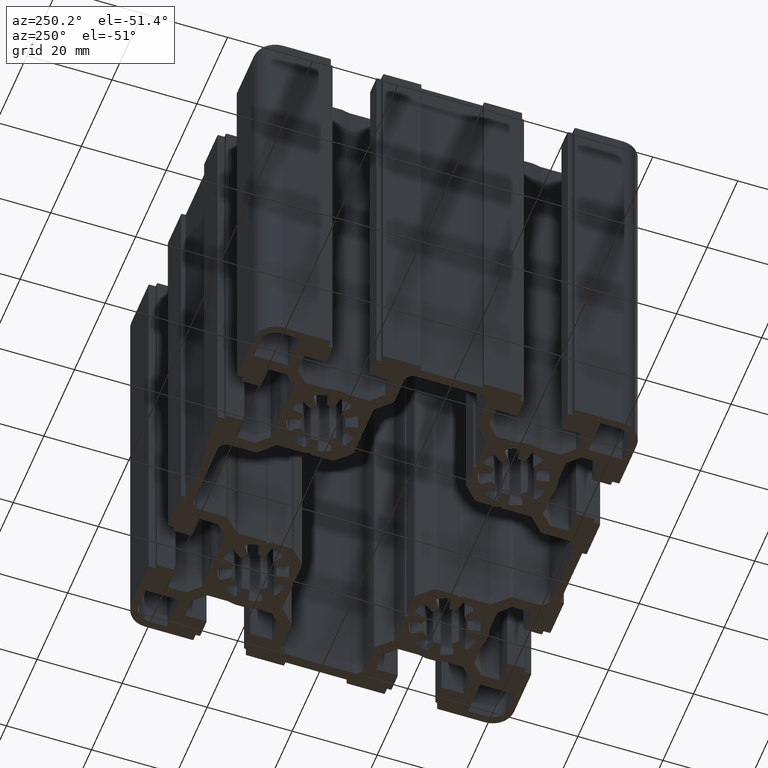
[diagram: clean part render]
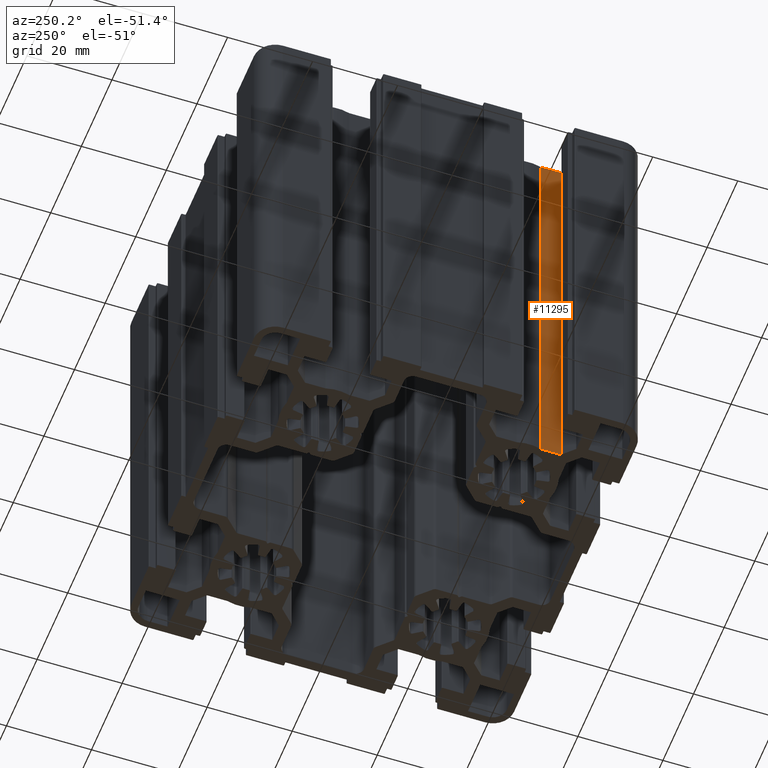
[diagram: same view with one face highlighted and labeled with its STEP entity id]
A machine part, auxiliary view. The second image highlights one B-rep face of the part: STEP entity #11295.
In plain terms, the highlighted planar face has unit normal (-1, 0, 0).
Its self-contained STEP definition (entity closure, byte-faithful):
#210=PLANE('',#12297);
#701=FACE_OUTER_BOUND('',#1275,.T.);
#1275=EDGE_LOOP('',(#8737,#8738,#8739,#8740));
#2228=LINE('',#18469,#3352);
#2229=LINE('',#18472,#3353);
#2230=LINE('',#18474,#3354);
#2231=LINE('',#18475,#3355);
#3352=VECTOR('',#15032,100.);
#3353=VECTOR('',#15035,4.80511236332561);
#3354=VECTOR('',#15036,4.80511236332561);
#3355=VECTOR('',#15037,100.);
#5110=VERTEX_POINT('',#18463);
#5112=VERTEX_POINT('',#18467);
#5113=VERTEX_POINT('',#18471);
#5114=VERTEX_POINT('',#18473);
#6638=EDGE_CURVE('',#5112,#5110,#2228,.T.);
#6639=EDGE_CURVE('',#5110,#5113,#2229,.T.);
#6640=EDGE_CURVE('',#5114,#5112,#2230,.T.);
#6641=EDGE_CURVE('',#5114,#5113,#2231,.T.);
#8737=ORIENTED_EDGE('',*,*,#6639,.F.);
#8738=ORIENTED_EDGE('',*,*,#6638,.F.);
#8739=ORIENTED_EDGE('',*,*,#6640,.F.);
#8740=ORIENTED_EDGE('',*,*,#6641,.T.);
#11295=ADVANCED_FACE('',(#701),#210,.T.);
#12297=AXIS2_PLACEMENT_3D('',#18470,#15033,#15034);
#15032=DIRECTION('',(0.,0.,1.));
#15033=DIRECTION('center_axis',(-1.,0.,0.));
#15034=DIRECTION('ref_axis',(0.,-1.,0.));
#15035=DIRECTION('',(0.,-1.,0.));
#15036=DIRECTION('',(0.,1.,0.));
#15037=DIRECTION('',(0.,0.,1.));
#18463=CARTESIAN_POINT('',(-32.0000001037966,-25.2856769842694,100.));
#18467=CARTESIAN_POINT('',(-32.0000001037966,-25.2856769842694,0.));
#18469=CARTESIAN_POINT('',(-32.0000001037966,-25.2856769842694,0.));
#18470=CARTESIAN_POINT('Origin',(-32.0000001037966,-25.2856769842694,0.));
#18471=CARTESIAN_POINT('',(-32.0000001037966,-30.090789347595,100.));
#18472=CARTESIAN_POINT('',(-32.0000001037966,-12.6428384921347,100.));
#18473=CARTESIAN_POINT('',(-32.0000001037966,-30.090789347595,0.));
#18474=CARTESIAN_POINT('',(-32.0000001037966,-12.6428384921347,0.));
#18475=CARTESIAN_POINT('',(-32.0000001037966,-30.090789347595,0.));